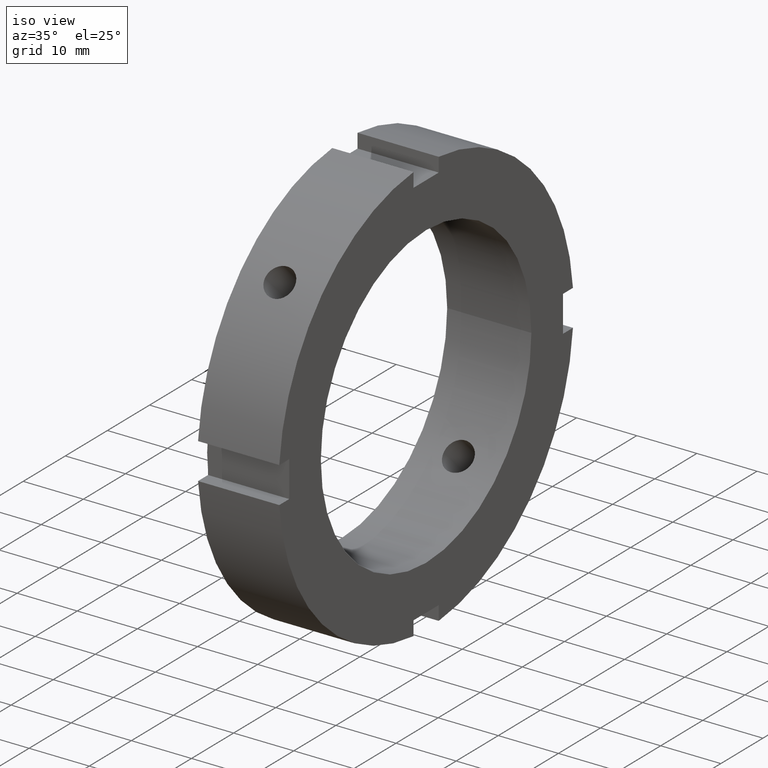
[diagram: clean part render]
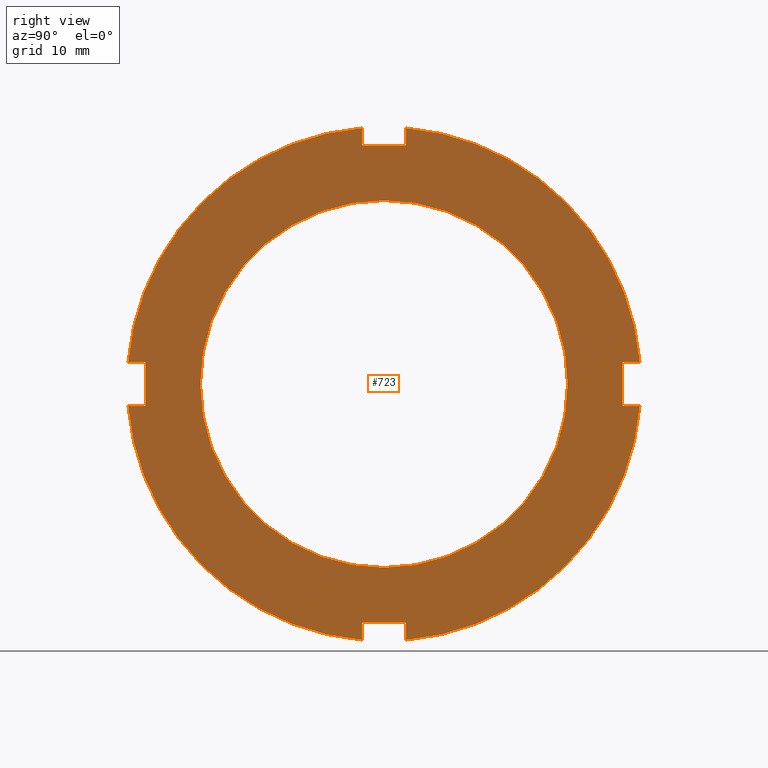
[diagram: tour spotlight — one face highlighted and labeled with its STEP entity id]
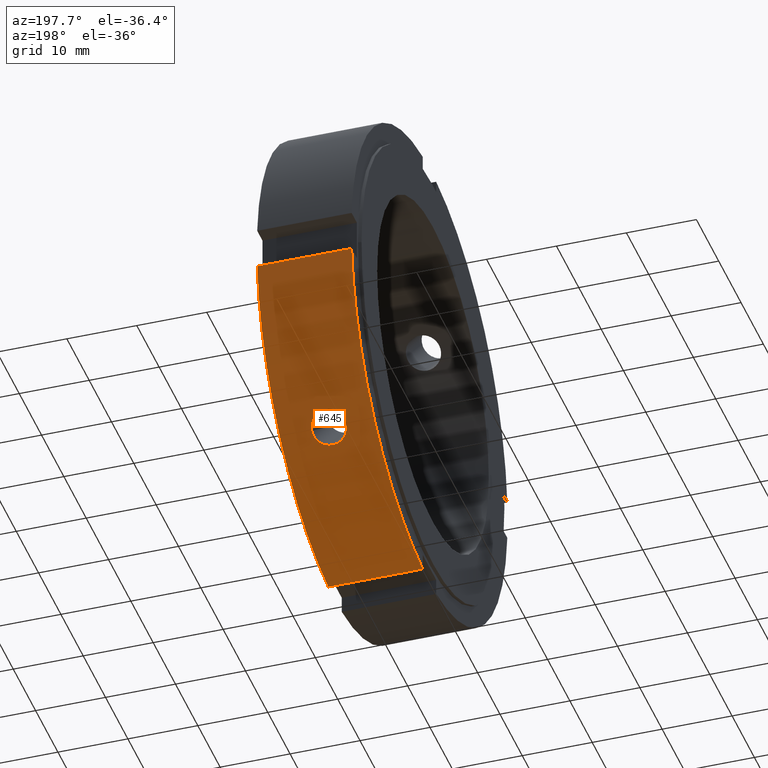
[diagram: tour spotlight — one face highlighted and labeled with its STEP entity id]
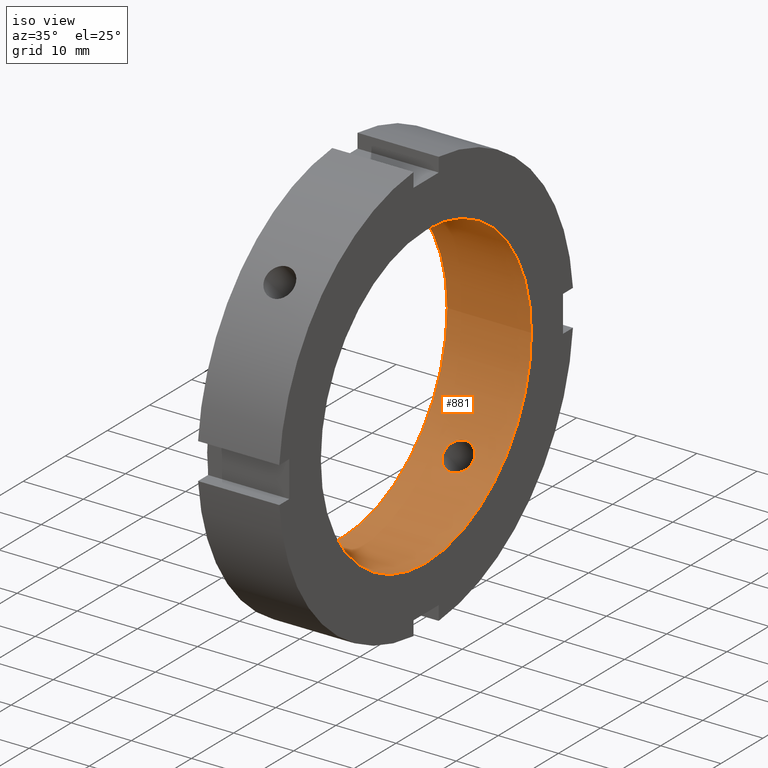
[diagram: tour spotlight — one face highlighted and labeled with its STEP entity id]
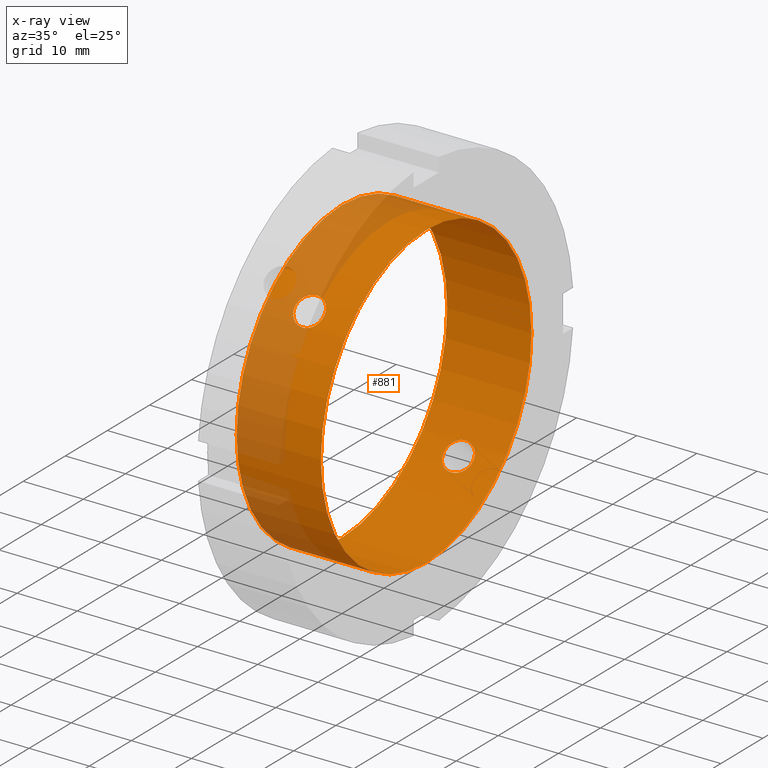
[diagram: x-ray of the same camera — body ghosted, this tour face saturated]
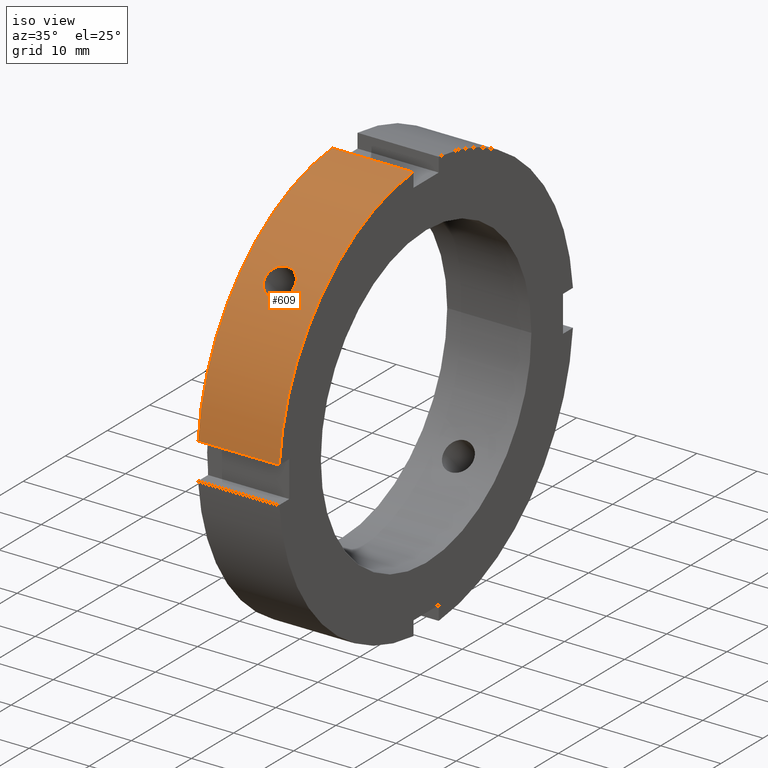
[diagram: tour spotlight — one face highlighted and labeled with its STEP entity id]
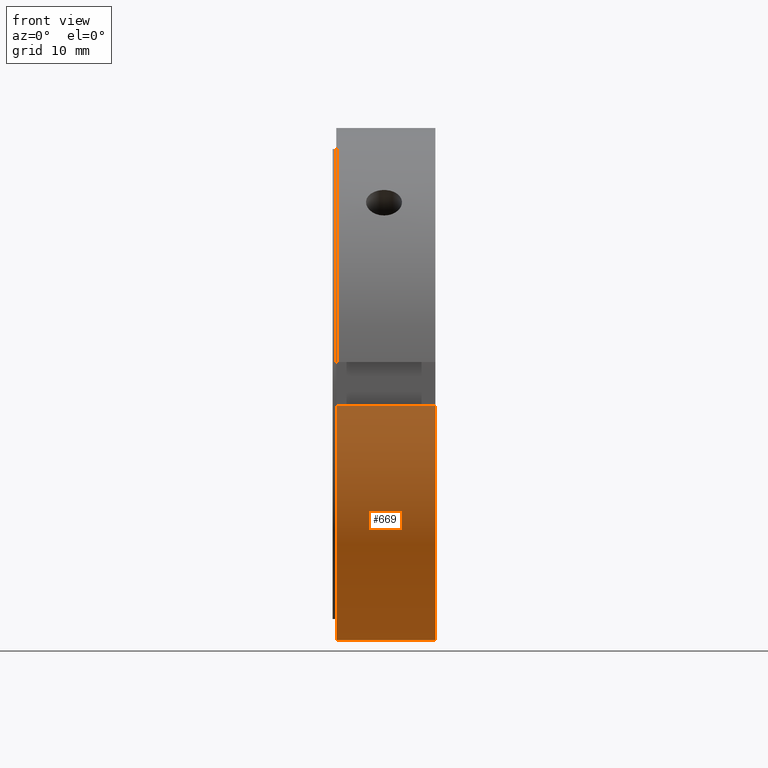
[diagram: tour spotlight — one face highlighted and labeled with its STEP entity id]
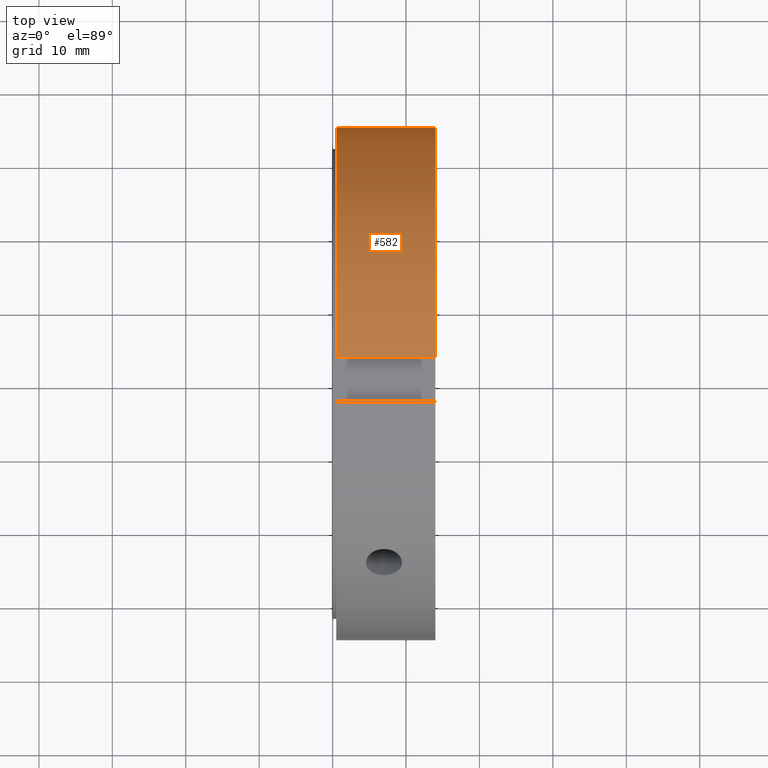
[diagram: tour spotlight — one face highlighted and labeled with its STEP entity id]
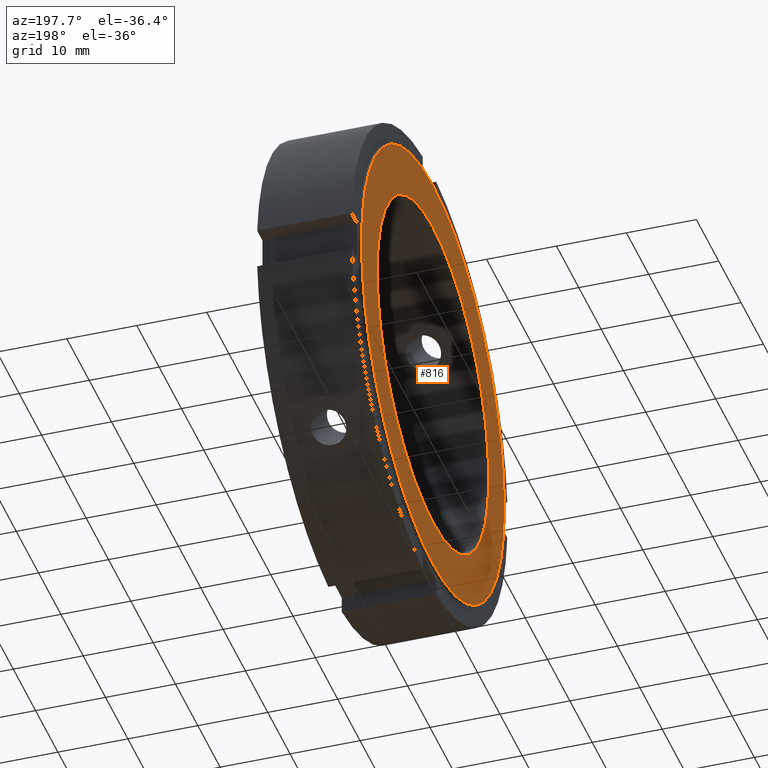
[diagram: tour spotlight — one face highlighted and labeled with its STEP entity id]
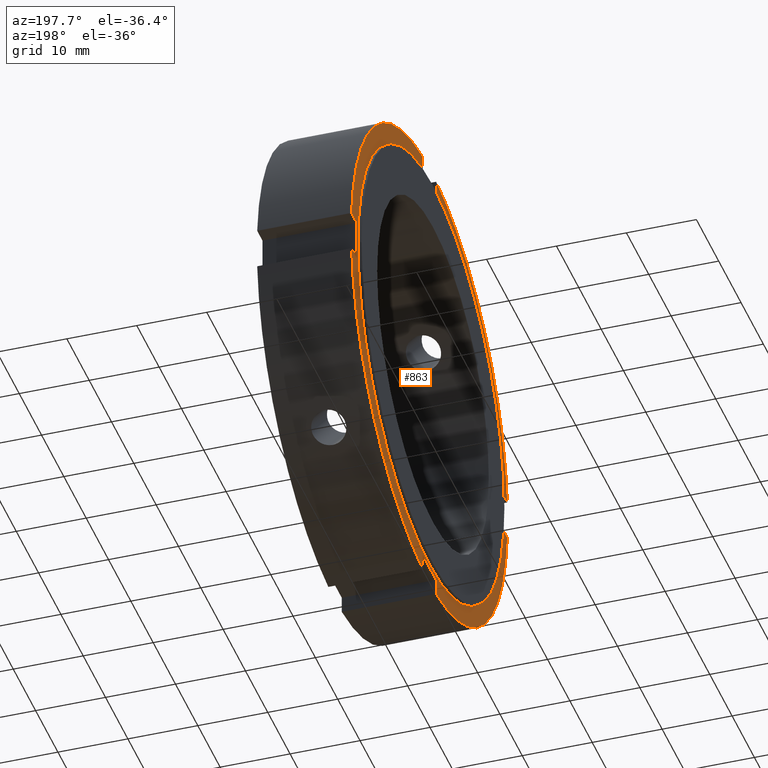
[diagram: tour spotlight — one face highlighted and labeled with its STEP entity id]
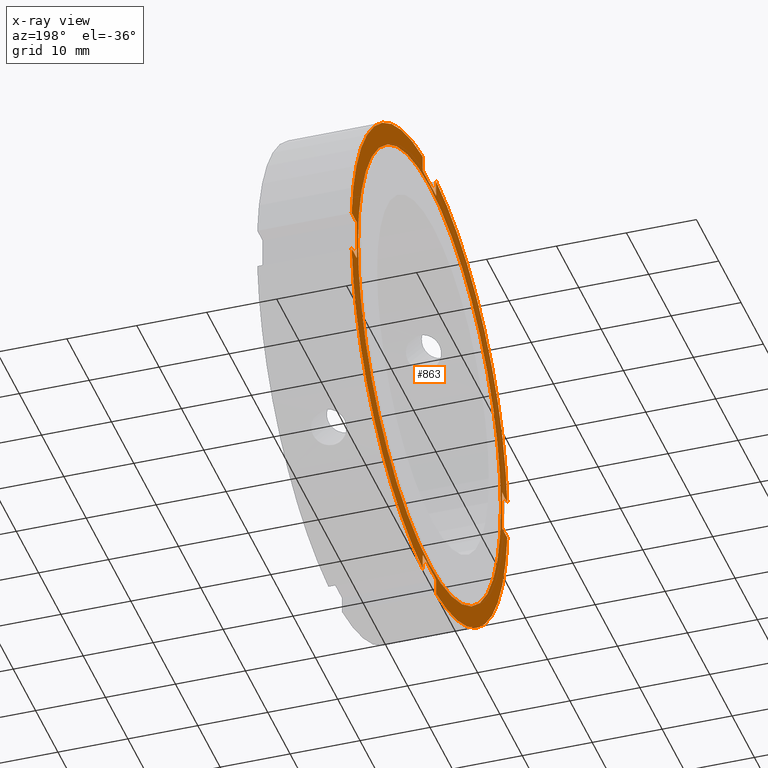
[diagram: x-ray of the same camera — body ghosted, this tour face saturated]
A machine part: a face-by-face anatomy tour. The part has 23 B-rep faces; the first image is the clean iso view, then the 8 largest visible faces are spotlighted one at a time (largest first), each with its STEP entity span.

Face 1 — right view, entity #723. In plain terms, the highlighted planar face has unit normal (1, 0, 0).
Definition (entity closure, byte-faithful):
#259=CARTESIAN_POINT('',(13.999999999999995,-3.000000000000005,-32.500000000000000));
#260=VERTEX_POINT('',#259);
#267=CARTESIAN_POINT('',(13.999999999999995,-3.000000000000005,-34.871191548325385));
#268=VERTEX_POINT('',#267);
#269=CARTESIAN_POINT('',(13.999999999999995,-3.000000000000008,-34.871191548325385));
#270=DIRECTION('',(0.0,0.0,1.0));
#271=VECTOR('',#270,2.371191548325385);
#272=LINE('',#269,#271);
#273=EDGE_CURVE('',#268,#260,#272,.T.);
#299=CARTESIAN_POINT('',(13.999999999999995,2.999999999999992,-34.871191548325385));
#300=VERTEX_POINT('',#299);
#307=CARTESIAN_POINT('',(13.999999999999995,2.999999999999993,-32.500000000000000));
#308=VERTEX_POINT('',#307);
#309=CARTESIAN_POINT('',(13.999999999999995,2.999999999999993,-32.500000000000000));
#310=DIRECTION('',(0.0,0.0,-1.0));
#311=VECTOR('',#310,2.371191548325385);
#312=LINE('',#309,#311);
#313=EDGE_CURVE('',#308,#300,#312,.T.);
#336=CARTESIAN_POINT('',(13.999999999999995,-3.000000000000007,-32.499999999999993));
#337=DIRECTION('',(0.0,1.0,0.0));
#338=VECTOR('',#337,6.0);
#339=LINE('',#336,#338);
#340=EDGE_CURVE('',#260,#308,#339,.T.);
#361=CARTESIAN_POINT('',(13.999999999999995,-32.500000000000000,3.000000000000003));
#362=VERTEX_POINT('',#361);
#369=CARTESIAN_POINT('',(13.999999999999995,-34.871191548325385,3.000000000000003));
#370=VERTEX_POINT('',#369);
#371=CARTESIAN_POINT('',(13.999999999999995,-34.871191548325385,3.000000000000003));
#372=DIRECTION('',(0.0,1.0,0.0));
#373=VECTOR('',#372,2.371191548325385);
#374=LINE('',#371,#373);
#375=EDGE_CURVE('',#370,#362,#374,.T.);
#401=CARTESIAN_POINT('',(13.999999999999995,-34.871191548325385,-2.999999999999994));
#402=VERTEX_POINT('',#401);
#409=CARTESIAN_POINT('',(13.999999999999995,-32.500000000000000,-2.999999999999994));
#410=VERTEX_POINT('',#409);
#411=CARTESIAN_POINT('',(13.999999999999995,-32.500000000000000,-2.999999999999995));
#412=DIRECTION('',(0.0,-1.0,0.0));
#413=VECTOR('',#412,2.371191548325385);
#414=LINE('',#411,#413);
#415=EDGE_CURVE('',#410,#402,#414,.T.);
#438=CARTESIAN_POINT('',(13.999999999999995,-32.500000000000000,3.000000000000003));
#439=DIRECTION('',(0.0,0.0,-1.0));
#440=VECTOR('',#439,5.999999999999998);
#441=LINE('',#438,#440);
#442=EDGE_CURVE('',#362,#410,#441,.T.);
#463=CARTESIAN_POINT('',(13.999999999999995,3.000000000000001,32.500000000000000));
#464=VERTEX_POINT('',#463);
#471=CARTESIAN_POINT('',(13.999999999999995,3.000000000000001,34.871191548325385));
#472=VERTEX_POINT('',#471);
#473=CARTESIAN_POINT('',(13.999999999999995,3.000000000000004,34.871191548325385));
#474=DIRECTION('',(0.0,0.0,-1.0));
#475=VECTOR('',#474,2.371191548325385);
#476=LINE('',#473,#475);
#477=EDGE_CURVE('',#472,#464,#476,.T.);
#503=CARTESIAN_POINT('',(13.999999999999995,-2.999999999999996,34.871191548325385));
#504=VERTEX_POINT('',#503);
#511=CARTESIAN_POINT('',(13.999999999999995,-2.999999999999996,32.500000000000000));
#512=VERTEX_POINT('',#511);
#513=CARTESIAN_POINT('',(13.999999999999995,-2.999999999999997,32.500000000000000));
#514=DIRECTION('',(0.0,0.0,1.0));
#515=VECTOR('',#514,2.371191548325385);
#516=LINE('',#513,#515);
#517=EDGE_CURVE('',#512,#504,#516,.T.);
#540=CARTESIAN_POINT('',(13.999999999999995,3.0,32.500000000000000));
#541=DIRECTION('',(0.0,-1.0,0.0));
#542=VECTOR('',#541,5.999999999999996);
#543=LINE('',#540,#542);
#544=EDGE_CURVE('',#464,#512,#543,.T.);
#556=CARTESIAN_POINT('',(13.999999999999995,34.871191548325385,2.999999999999999));
#557=VERTEX_POINT('',#556);
#558=CARTESIAN_POINT('',(13.999999999999993,0.0,0.0));
#559=DIRECTION('',(1.0,0.0,0.0));
#560=DIRECTION('',(0.0,1.0,0.0));
#561=AXIS2_PLACEMENT_3D('',#558,#559,#560);
#562=CIRCLE('',#561,35.0);
#563=EDGE_CURVE('',#557,#472,#562,.T.);
#589=CARTESIAN_POINT('',(13.999999999999993,0.0,0.0));
#590=DIRECTION('',(1.0,0.0,0.0));
#591=DIRECTION('',(0.0,1.0,0.0));
#592=AXIS2_PLACEMENT_3D('',#589,#590,#591);
#593=CIRCLE('',#592,35.0);
#594=EDGE_CURVE('',#504,#370,#593,.T.);
#625=CARTESIAN_POINT('',(13.999999999999995,34.871191548325385,-2.999999999999999));
#626=VERTEX_POINT('',#625);
#633=CARTESIAN_POINT('',(13.999999999999993,0.0,0.0));
#634=DIRECTION('',(1.0,0.0,0.0));
#635=DIRECTION('',(0.0,1.0,0.0));
#636=AXIS2_PLACEMENT_3D('',#633,#634,#635);
#637=CIRCLE('',#636,35.0);
#638=EDGE_CURVE('',#300,#626,#637,.T.);
#652=CARTESIAN_POINT('',(13.999999999999993,0.0,0.0));
#653=DIRECTION('',(1.0,0.0,0.0));
#654=DIRECTION('',(0.0,1.0,0.0));
#655=AXIS2_PLACEMENT_3D('',#652,#653,#654);
#656=CIRCLE('',#655,35.0);
#657=EDGE_CURVE('',#402,#268,#656,.T.);
#670=CARTESIAN_POINT('',(13.999999999999995,30.0,0.0));
#671=DIRECTION('',(1.0,0.0,0.0));
#672=DIRECTION('',(0.0,0.0,-1.0));
#673=AXIS2_PLACEMENT_3D('',#670,#671,#672);
#674=PLANE('',#673);
#675=ORIENTED_EDGE('',*,*,#273,.T.);
#676=ORIENTED_EDGE('',*,*,#340,.T.);
#677=ORIENTED_EDGE('',*,*,#313,.T.);
#678=ORIENTED_EDGE('',*,*,#638,.T.);
#679=CARTESIAN_POINT('',(13.999999999999995,32.500000000000000,-2.999999999999999));
#680=VERTEX_POINT('',#679);
#681=CARTESIAN_POINT('',(13.999999999999995,34.871191548325385,-2.999999999999999));
#682=DIRECTION('',(0.0,-1.0,0.0));
#683=VECTOR('',#682,2.371191548325385);
#684=LINE('',#681,#683);
#685=EDGE_CURVE('',#626,#680,#684,.T.);
#686=ORIENTED_EDGE('',*,*,#685,.T.);
#687=CARTESIAN_POINT('',(13.999999999999995,32.500000000000000,2.999999999999999));
#688=VERTEX_POINT('',#687);
#689=CARTESIAN_POINT('',(13.999999999999995,32.500000000000000,-2.999999999999999));
#690=DIRECTION('',(0.0,0.0,1.0));
#691=VECTOR('',#690,5.999999999999998);
#692=LINE('',#689,#691);
#693=EDGE_CURVE('',#680,#688,#692,.T.);
#694=ORIENTED_EDGE('',*,*,#693,.T.);
#695=CARTESIAN_POINT('',(13.999999999999995,32.500000000000000,2.999999999999999));
#696=DIRECTION('',(0.0,1.0,0.0));
#697=VECTOR('',#696,2.371191548325385);
#698=LINE('',#695,#697);
#699=EDGE_CURVE('',#688,#557,#698,.T.);
#700=ORIENTED_EDGE('',*,*,#699,.T.);
#701=ORIENTED_EDGE('',*,*,#563,.T.);
#702=ORIENTED_EDGE('',*,*,#477,.T.);
#703=ORIENTED_EDGE('',*,*,#544,.T.);
#704=ORIENTED_EDGE('',*,*,#517,.T.);
#705=ORIENTED_EDGE('',*,*,#594,.T.);
#706=ORIENTED_EDGE('',*,*,#375,.T.);
#707=ORIENTED_EDGE('',*,*,#442,.T.);
#708=ORIENTED_EDGE('',*,*,#415,.T.);
#709=ORIENTED_EDGE('',*,*,#657,.T.);
#710=EDGE_LOOP('',(#675,#676,#677,#678,#686,#694,#700,#701,#702,#703,#704,#705,#706,#707,#708,#709));
#711=FACE_OUTER_BOUND('',#710,.T.);
#712=CARTESIAN_POINT('',(13.999999999999995,25.0,0.0));
#713=VERTEX_POINT('',#712);
#714=CARTESIAN_POINT('',(13.999999999999995,0.0,0.0));
#715=DIRECTION('',(1.0,0.0,0.0));
#716=DIRECTION('',(0.0,1.0,0.0));
#717=AXIS2_PLACEMENT_3D('',#714,#715,#716);
#718=CIRCLE('',#717,25.0);
#719=EDGE_CURVE('',#713,#713,#718,.T.);
#720=ORIENTED_EDGE('',*,*,#719,.F.);
#721=EDGE_LOOP('',(#720));
#722=FACE_BOUND('',#721,.T.);
#723=ADVANCED_FACE('',(#711,#722),#674,.T.);

Face 2 — auxiliary view, entity #645. In plain terms, the highlighted cylindrical surface (partial cylindrical patch) has radius 35 mm, axis along (1, 0, 0).
Definition (entity closure, byte-faithful):
#161=CARTESIAN_POINT('',(6.999999999999994,22.949183955440592,-26.426027998534853));
#162=VERTEX_POINT('',#161);
#163=CARTESIAN_POINT('',(6.999999999999993,22.949183955440596,-26.426027998534853));
#164=CARTESIAN_POINT('',(7.308803977342720,22.949183955440596,-26.426027998534853));
#165=CARTESIAN_POINT('',(7.638121638273502,22.996032676072634,-26.385569716846732));
#166=CARTESIAN_POINT('',(8.243815084881787,23.185006169981509,-26.219673853535475));
#167=CARTESIAN_POINT('',(8.520199516624388,23.326960186816315,-26.094073412893088));
#168=CARTESIAN_POINT('',(8.956644346498582,23.650920794621090,-25.800807823062158));
#169=CARTESIAN_POINT('',(9.145834056158348,23.854522135317989,-25.613542438584851));
#170=CARTESIAN_POINT('',(9.396764694186130,24.294330926372773,-25.196770971624616));
#171=CARTESIAN_POINT('',(9.458499999999994,24.530380135175250,-24.967094547883072));
#172=CARTESIAN_POINT('',(9.458499999999994,24.967094547883057,-24.530380135175260));
#173=CARTESIAN_POINT('',(9.396764694186134,25.196770971624609,-24.294330926372780));
#174=CARTESIAN_POINT('',(9.145834056158353,25.613542438584844,-23.854522135317993));
#175=CARTESIAN_POINT('',(8.956644346498578,25.800807823062151,-23.650920794621094));
#176=CARTESIAN_POINT('',(8.520199516624384,26.094073412893081,-23.326960186816326));
#177=CARTESIAN_POINT('',(8.243815084881787,26.219673853535479,-23.185006169981509));
#178=CARTESIAN_POINT('',(7.638121638273500,26.385569716846735,-22.996032676072634));
#179=CARTESIAN_POINT('',(7.308803977342721,26.426027998534853,-22.949183955440592));
#180=CARTESIAN_POINT('',(6.691196022657268,26.426027998534853,-22.949183955440592));
#181=CARTESIAN_POINT('',(6.361878361726489,26.385569716846735,-22.996032676072634));
#182=CARTESIAN_POINT('',(5.756184915118202,26.219673853535479,-23.185006169981509));
#183=CARTESIAN_POINT('',(5.479800483375604,26.094073412893081,-23.326960186816326));
#184=CARTESIAN_POINT('',(5.043355653501410,25.800807823062151,-23.650920794621094));
#185=CARTESIAN_POINT('',(4.854165943841635,25.613542438584844,-23.854522135317993));
#186=CARTESIAN_POINT('',(4.603235305813854,25.196770971624609,-24.294330926372780));
#187=CARTESIAN_POINT('',(4.541499999999994,24.967094547883057,-24.530380135175260));
#188=CARTESIAN_POINT('',(4.541499999999994,24.530380135175250,-24.967094547883072));
#189=CARTESIAN_POINT('',(4.603235305813857,24.294330926372773,-25.196770971624616));
#190=CARTESIAN_POINT('',(4.854165943841635,23.854522135317996,-25.613542438584844));
#191=CARTESIAN_POINT('',(5.043355653501407,23.650920794621094,-25.800807823062151));
#192=CARTESIAN_POINT('',(5.479800483375600,23.326960186816326,-26.094073412893081));
#193=CARTESIAN_POINT('',(5.756184915118200,23.185006169981506,-26.219673853535465));
#194=CARTESIAN_POINT('',(6.361878361726485,22.996032676072630,-26.385569716846724));
#195=CARTESIAN_POINT('',(6.691196022657266,22.949183955440596,-26.426027998534849));
#196=CARTESIAN_POINT('',(6.999999999999994,22.949183955440596,-26.426027998534849));
#197=B_SPLINE_CURVE_WITH_KNOTS('',3,(#163,#164,#165,#166,#167,#168,#169,#170,#171,#172,#173,#174,#175,#176,#177,#178,#179,#180,#181,#182,#183,#184,#185,#186,#187,#188,#189,#190,#191,#192,#193,#194,#195,#196),.UNSPECIFIED.,.T.,.U.,(4,2,2,2,2,2,2,2,2,2,2,2,2,2,2,2,4),(0.0,0.092641193202818,0.185282386405636,0.277923503205913,0.370564620006191,0.463205736806468,0.555846853606746,0.648488046809564,0.741129240012382,0.833770433215200,0.926411626418018,1.019052743218296,1.111693860018574,1.204334976818851,1.296976093619128,1.389617286821946,1.482258480024764),.UNSPECIFIED.);
#198=EDGE_CURVE('',#162,#162,#197,.T.);
#289=CARTESIAN_POINT('',(0.499999999999994,2.999999999999992,-34.871191548325385));
#290=VERTEX_POINT('',#289);
#299=CARTESIAN_POINT('',(13.999999999999995,2.999999999999992,-34.871191548325385));
#300=VERTEX_POINT('',#299);
#301=CARTESIAN_POINT('',(13.999999999999995,2.999999999999992,-34.871191548325385));
#302=DIRECTION('',(-1.0,0.0,0.0));
#303=VECTOR('',#302,13.500000000000000);
#304=LINE('',#301,#303);
#305=EDGE_CURVE('',#300,#290,#304,.T.);
#610=CARTESIAN_POINT('',(7.249999999999993,0.0,0.0));
#611=DIRECTION('',(1.0,0.0,0.0));
#612=DIRECTION('',(0.0,1.0,0.0));
#613=AXIS2_PLACEMENT_3D('',#610,#611,#612);
#614=CYLINDRICAL_SURFACE('',#613,35.0);
#615=ORIENTED_EDGE('',*,*,#305,.T.);
#616=CARTESIAN_POINT('',(0.499999999999994,34.871191548325385,-2.999999999999999));
#617=VERTEX_POINT('',#616);
#618=CARTESIAN_POINT('',(0.499999999999994,0.0,0.0));
#619=DIRECTION('',(1.0,0.0,0.0));
#620=DIRECTION('',(0.0,1.0,0.0));
#621=AXIS2_PLACEMENT_3D('',#618,#619,#620);
#622=CIRCLE('',#621,34.999999999999993);
#623=EDGE_CURVE('',#290,#617,#622,.T.);
#624=ORIENTED_EDGE('',*,*,#623,.T.);
#625=CARTESIAN_POINT('',(13.999999999999995,34.871191548325385,-2.999999999999999));
#626=VERTEX_POINT('',#625);
#627=CARTESIAN_POINT('',(0.499999999999994,34.871191548325385,-2.999999999999999));
#628=DIRECTION('',(1.0,0.0,0.0));
#629=VECTOR('',#628,13.500000000000000);
#630=LINE('',#627,#629);
#631=EDGE_CURVE('',#617,#626,#630,.T.);
#632=ORIENTED_EDGE('',*,*,#631,.T.);
#633=CARTESIAN_POINT('',(13.999999999999993,0.0,0.0));
#634=DIRECTION('',(1.0,0.0,0.0));
#635=DIRECTION('',(0.0,1.0,0.0));
#636=AXIS2_PLACEMENT_3D('',#633,#634,#635);
#637=CIRCLE('',#636,35.0);
#638=EDGE_CURVE('',#300,#626,#637,.T.);
#639=ORIENTED_EDGE('',*,*,#638,.F.);
#640=EDGE_LOOP('',(#615,#624,#632,#639));
#641=FACE_OUTER_BOUND('',#640,.T.);
#642=ORIENTED_EDGE('',*,*,#198,.T.);
#643=EDGE_LOOP('',(#642));
#644=FACE_BOUND('',#643,.T.);
#645=ADVANCED_FACE('',(#641,#644),#614,.T.);

Face 3 — iso view, entity #881. An x-ray twin of the same camera follows (body ghosted, this face saturated) — the face is partly hidden behind the body. In plain terms, the highlighted cylindrical surface (bore or boss wall) has radius 25 mm, axis along (1, 0, 0).
Definition (entity closure, byte-faithful):
#114=CARTESIAN_POINT('',(6.999999999999994,-19.330405675331022,15.853561632236776));
#115=VERTEX_POINT('',#114);
#116=CARTESIAN_POINT('',(6.999999999999994,-19.330405675331022,15.853561632236783));
#117=CARTESIAN_POINT('',(7.308909568716839,-19.330405675331022,15.853561632236783));
#118=CARTESIAN_POINT('',(7.638272298783562,-19.291210539380096,15.901731740063511));
#119=CARTESIAN_POINT('',(8.243936383707563,-19.129943210713446,16.095376637283227));
#120=CARTESIAN_POINT('',(8.520254821612250,-19.007642829666402,16.240607816653558));
#121=CARTESIAN_POINT('',(8.956588527202165,-18.720614895133156,16.570648926286079));
#122=CARTESIAN_POINT('',(9.145762449267938,-18.536669200698192,16.777476945031790));
#123=CARTESIAN_POINT('',(9.396723695868744,-18.124532598032438,17.221880147018492));
#124=CARTESIAN_POINT('',(9.458499999999994,-17.896100885354087,17.459238173973276));
#125=CARTESIAN_POINT('',(9.458499999999994,-17.459238173973244,17.896100885354119));
#126=CARTESIAN_POINT('',(9.396723695868737,-17.221880147018457,18.124532598032467));
#127=CARTESIAN_POINT('',(9.145762449267929,-16.777476945031758,18.536669200698221));
#128=CARTESIAN_POINT('',(8.956588527202165,-16.570648926286051,18.720614895133185));
#129=CARTESIAN_POINT('',(8.520254821612250,-16.240607816653529,19.007642829666423));
#130=CARTESIAN_POINT('',(8.243936383707558,-16.095376637283209,19.129943210713460));
#131=CARTESIAN_POINT('',(7.638272298783557,-15.901731740063497,19.291210539380110));
#132=CARTESIAN_POINT('',(7.308909568716837,-15.853561632236763,19.330405675331036));
#133=CARTESIAN_POINT('',(6.691090431283149,-15.853561632236763,19.330405675331036));
#134=CARTESIAN_POINT('',(6.361727701216426,-15.901731740063493,19.291210539380110));
#135=CARTESIAN_POINT('',(5.756063616292425,-16.095376637283213,19.129943210713460));
#136=CARTESIAN_POINT('',(5.479745178387736,-16.240607816653537,19.007642829666416));
#137=CARTESIAN_POINT('',(5.043411472797824,-16.570648926286058,18.720614895133178));
#138=CARTESIAN_POINT('',(4.854237550732055,-16.777476945031765,18.536669200698213));
#139=CARTESIAN_POINT('',(4.603276304131250,-17.221880147018464,18.124532598032459));
#140=CARTESIAN_POINT('',(4.541499999999995,-17.459238173973247,17.896100885354119));
#141=CARTESIAN_POINT('',(4.541499999999993,-17.896100885354087,17.459238173973276));
#142=CARTESIAN_POINT('',(4.603276304131246,-18.124532598032435,17.221880147018489));
#143=CARTESIAN_POINT('',(4.854237550732051,-18.536669200698192,16.777476945031786));
#144=CARTESIAN_POINT('',(5.043411472797823,-18.720614895133160,16.570648926286079));
#145=CARTESIAN_POINT('',(5.479745178387738,-19.007642829666402,16.240607816653558));
#146=CARTESIAN_POINT('',(5.756063616292427,-19.129943210713442,16.095376637283231));
#147=CARTESIAN_POINT('',(6.361727701216427,-19.291210539380092,15.901731740063516));
#148=CARTESIAN_POINT('',(6.691090431283149,-19.330405675331019,15.853561632236783));
#149=CARTESIAN_POINT('',(6.999999999999994,-19.330405675331019,15.853561632236783));
#150=B_SPLINE_CURVE_WITH_KNOTS('',3,(#116,#117,#118,#119,#120,#121,#122,#123,#124,#125,#126,#127,#128,#129,#130,#131,#132,#133,#134,#135,#136,#137,#138,#139,#140,#141,#142,#143,#144,#145,#146,#147,#148,#149),.UNSPECIFIED.,.T.,.U.,(4,2,2,2,2,2,2,2,2,2,2,2,2,2,2,2,4),(0.0,0.092672870615053,0.185345741230107,0.278018316929588,0.370690892629069,0.463363468328550,0.556036044028031,0.648708914643084,0.741381785258137,0.834054655873191,0.926727526488244,1.019400102187724,1.112072677887205,1.204745253586686,1.297417829286167,1.390090699901220,1.482763570516274),.UNSPECIFIED.);
#151=EDGE_CURVE('',#115,#115,#150,.T.);
#202=CARTESIAN_POINT('',(6.999999999999994,15.853561632236772,-19.330405675331029));
#203=VERTEX_POINT('',#202);
#204=CARTESIAN_POINT('',(6.999999999999994,15.853561632236772,-19.330405675331029));
#205=CARTESIAN_POINT('',(6.691090431283150,15.853561632236772,-19.330405675331029));
#206=CARTESIAN_POINT('',(6.361727701216427,15.901731740063504,-19.291210539380103));
#207=CARTESIAN_POINT('',(5.756063616292428,16.095376637283216,-19.129943210713453));
#208=CARTESIAN_POINT('',(5.479745178387738,16.240607816653537,-19.007642829666413));
#209=CARTESIAN_POINT('',(5.043411472797823,16.570648926286058,-18.720614895133174));
#210=CARTESIAN_POINT('',(4.854237550732057,16.777476945031768,-18.536669200698203));
#211=CARTESIAN_POINT('',(4.603276304131249,17.221880147018467,-18.124532598032449));
#212=CARTESIAN_POINT('',(4.541499999999995,17.459238173973258,-17.896100885354116));
#213=CARTESIAN_POINT('',(4.541499999999993,17.896100885354102,-17.459238173973272));
#214=CARTESIAN_POINT('',(4.603276304131246,18.124532598032445,-17.221880147018485));
#215=CARTESIAN_POINT('',(4.854237550732048,18.536669200698199,-16.777476945031783));
#216=CARTESIAN_POINT('',(5.043411472797827,18.720614895133163,-16.570648926286076));
#217=CARTESIAN_POINT('',(5.479745178387738,19.007642829666406,-16.240607816653551));
#218=CARTESIAN_POINT('',(5.756063616292424,19.129943210713453,-16.095376637283220));
#219=CARTESIAN_POINT('',(6.361727701216426,19.291210539380103,-15.901731740063505));
#220=CARTESIAN_POINT('',(6.691090431283149,19.330405675331033,-15.853561632236774));
#221=CARTESIAN_POINT('',(7.308909568716839,19.330405675331033,-15.853561632236772));
#222=CARTESIAN_POINT('',(7.638272298783563,19.291210539380103,-15.901731740063505));
#223=CARTESIAN_POINT('',(8.243936383707563,19.129943210713453,-16.095376637283220));
#224=CARTESIAN_POINT('',(8.520254821612248,19.007642829666406,-16.240607816653551));
#225=CARTESIAN_POINT('',(8.956588527202163,18.720614895133160,-16.570648926286076));
#226=CARTESIAN_POINT('',(9.145762449267938,18.536669200698199,-16.777476945031779));
#227=CARTESIAN_POINT('',(9.396723695868744,18.124532598032445,-17.221880147018481));
#228=CARTESIAN_POINT('',(9.458499999999994,17.896100885354102,-17.459238173973269));
#229=CARTESIAN_POINT('',(9.458499999999994,17.459238173973258,-17.896100885354116));
#230=CARTESIAN_POINT('',(9.396723695868740,17.221880147018471,-18.124532598032452));
#231=CARTESIAN_POINT('',(9.145762449267931,16.777476945031772,-18.536669200698206));
#232=CARTESIAN_POINT('',(8.956588527202165,16.570648926286058,-18.720614895133174));
#233=CARTESIAN_POINT('',(8.520254821612250,16.240607816653537,-19.007642829666413));
#234=CARTESIAN_POINT('',(8.243936383707560,16.095376637283216,-19.129943210713453));
#235=CARTESIAN_POINT('',(7.638272298783560,15.901731740063504,-19.291210539380103));
#236=CARTESIAN_POINT('',(7.308909568716837,15.853561632236772,-19.330405675331029));
#237=CARTESIAN_POINT('',(6.999999999999993,15.853561632236772,-19.330405675331029));
#238=B_SPLINE_CURVE_WITH_KNOTS('',3,(#204,#205,#206,#207,#208,#209,#210,#211,#212,#213,#214,#215,#216,#217,#218,#219,#220,#221,#222,#223,#224,#225,#226,#227,#228,#229,#230,#231,#232,#233,#234,#235,#236,#237),.UNSPECIFIED.,.T.,.U.,(4,2,2,2,2,2,2,2,2,2,2,2,2,2,2,2,4),(0.0,0.092672870615053,0.185345741230106,0.278018316929587,0.370690892629068,0.463363468328549,0.556036044028030,0.648708914643084,0.741381785258137,0.834054655873191,0.926727526488244,1.019400102187725,1.112072677887206,1.204745253586687,1.297417829286168,1.390090699901221,1.482763570516275),.UNSPECIFIED.);
#239=EDGE_CURVE('',#203,#203,#238,.T.);
#712=CARTESIAN_POINT('',(13.999999999999995,25.0,0.0));
#713=VERTEX_POINT('',#712);
#714=CARTESIAN_POINT('',(13.999999999999995,0.0,0.0));
#715=DIRECTION('',(1.0,0.0,0.0));
#716=DIRECTION('',(0.0,1.0,0.0));
#717=AXIS2_PLACEMENT_3D('',#714,#715,#716);
#718=CIRCLE('',#717,25.0);
#719=EDGE_CURVE('',#713,#713,#718,.T.);
#805=CARTESIAN_POINT('',(-6.760167E-015,25.0,0.0));
#806=VERTEX_POINT('',#805);
#807=CARTESIAN_POINT('',(-6.761085E-015,0.0,0.0));
#808=DIRECTION('',(1.0,0.0,0.0));
#809=DIRECTION('',(0.0,1.0,0.0));
#810=AXIS2_PLACEMENT_3D('',#807,#808,#809);
#811=CIRCLE('',#810,25.0);
#812=EDGE_CURVE('',#806,#806,#811,.T.);
#864=CARTESIAN_POINT('',(6.999999999999994,0.0,0.0));
#865=DIRECTION('',(1.0,0.0,0.0));
#866=DIRECTION('',(0.0,1.0,0.0));
#867=AXIS2_PLACEMENT_3D('',#864,#865,#866);
#868=CYLINDRICAL_SURFACE('',#867,25.0);
#869=ORIENTED_EDGE('',*,*,#812,.F.);
#870=EDGE_LOOP('',(#869));
#871=FACE_OUTER_BOUND('',#870,.T.);
#872=ORIENTED_EDGE('',*,*,#151,.T.);
#873=EDGE_LOOP('',(#872));
#874=FACE_BOUND('',#873,.T.);
#875=ORIENTED_EDGE('',*,*,#239,.T.);
#876=EDGE_LOOP('',(#875));
#877=FACE_BOUND('',#876,.T.);
#878=ORIENTED_EDGE('',*,*,#719,.T.);
#879=EDGE_LOOP('',(#878));
#880=FACE_BOUND('',#879,.T.);
#881=ADVANCED_FACE('',(#871,#874,#877,#880),#868,.F.);

Face 4 — iso view, entity #609. In plain terms, the highlighted cylindrical surface (partial cylindrical patch) has radius 35 mm, axis along (1, 0, 0).
Definition (entity closure, byte-faithful):
#73=CARTESIAN_POINT('',(6.999999999999994,-26.426027998534849,22.949183955440596));
#74=VERTEX_POINT('',#73);
#75=CARTESIAN_POINT('',(6.999999999999994,-26.426027998534842,22.949183955440606));
#76=CARTESIAN_POINT('',(6.691196022657269,-26.426027998534842,22.949183955440606));
#77=CARTESIAN_POINT('',(6.361878361726490,-26.385569716846721,22.996032676072641));
#78=CARTESIAN_POINT('',(5.756184915118206,-26.219673853535465,23.185006169981520));
#79=CARTESIAN_POINT('',(5.479800483375602,-26.094073412893074,23.326960186816326));
#80=CARTESIAN_POINT('',(5.043355653501407,-25.800807823062144,23.650920794621104));
#81=CARTESIAN_POINT('',(4.854165943841637,-25.613542438584837,23.854522135318000));
#82=CARTESIAN_POINT('',(4.603235305813854,-25.196770971624606,24.294330926372787));
#83=CARTESIAN_POINT('',(4.541499999999993,-24.967094547883050,24.530380135175271));
#84=CARTESIAN_POINT('',(4.541499999999995,-24.530380135175236,24.967094547883075));
#85=CARTESIAN_POINT('',(4.603235305813859,-24.294330926372751,25.196770971624638));
#86=CARTESIAN_POINT('',(4.854165943841647,-23.854522135317964,25.613542438584869));
#87=CARTESIAN_POINT('',(5.043355653501407,-23.650920794621072,25.800807823062168));
#88=CARTESIAN_POINT('',(5.479800483375601,-23.326960186816301,26.094073412893096));
#89=CARTESIAN_POINT('',(5.756184915118205,-23.185006169981502,26.219673853535483));
#90=CARTESIAN_POINT('',(6.361878361726488,-22.996032676072623,26.385569716846739));
#91=CARTESIAN_POINT('',(6.691196022657269,-22.949183955440589,26.426027998534856));
#92=CARTESIAN_POINT('',(7.308803977342720,-22.949183955440589,26.426027998534856));
#93=CARTESIAN_POINT('',(7.638121638273500,-22.996032676072623,26.385569716846739));
#94=CARTESIAN_POINT('',(8.243815084881785,-23.185006169981502,26.219673853535483));
#95=CARTESIAN_POINT('',(8.520199516624388,-23.326960186816308,26.094073412893092));
#96=CARTESIAN_POINT('',(8.956644346498582,-23.650920794621083,25.800807823062158));
#97=CARTESIAN_POINT('',(9.145834056158348,-23.854522135317978,25.613542438584854));
#98=CARTESIAN_POINT('',(9.396764694186130,-24.294330926372755,25.196770971624630));
#99=CARTESIAN_POINT('',(9.458499999999994,-24.530380135175239,24.967094547883075));
#100=CARTESIAN_POINT('',(9.458499999999994,-24.967094547883050,24.530380135175271));
#101=CARTESIAN_POINT('',(9.396764694186135,-25.196770971624602,24.294330926372787));
#102=CARTESIAN_POINT('',(9.145834056158352,-25.613542438584833,23.854522135318000));
#103=CARTESIAN_POINT('',(8.956644346498582,-25.800807823062144,23.650920794621104));
#104=CARTESIAN_POINT('',(8.520199516624384,-26.094073412893081,23.326960186816326));
#105=CARTESIAN_POINT('',(8.243815084881783,-26.219673853535468,23.185006169981520));
#106=CARTESIAN_POINT('',(7.638121638273498,-26.385569716846724,22.996032676072641));
#107=CARTESIAN_POINT('',(7.308803977342720,-26.426027998534842,22.949183955440606));
#108=CARTESIAN_POINT('',(6.999999999999994,-26.426027998534842,22.949183955440606));
#109=B_SPLINE_CURVE_WITH_KNOTS('',3,(#75,#76,#77,#78,#79,#80,#81,#82,#83,#84,#85,#86,#87,#88,#89,#90,#91,#92,#93,#94,#95,#96,#97,#98,#99,#100,#101,#102,#103,#104,#105,#106,#107,#108),.UNSPECIFIED.,.T.,.U.,(4,2,2,2,2,2,2,2,2,2,2,2,2,2,2,2,4),(0.0,0.092641193202818,0.185282386405636,0.277923503205914,0.370564620006192,0.463205736806470,0.555846853606748,0.648488046809565,0.741129240012383,0.833770433215200,0.926411626418018,1.019052743218295,1.111693860018573,1.204334976818851,1.296976093619129,1.389617286821947,1.482258480024765),.UNSPECIFIED.);
#110=EDGE_CURVE('',#74,#74,#109,.T.);
#353=CARTESIAN_POINT('',(0.499999999999994,-34.871191548325385,3.000000000000003));
#354=VERTEX_POINT('',#353);
#369=CARTESIAN_POINT('',(13.999999999999995,-34.871191548325385,3.000000000000003));
#370=VERTEX_POINT('',#369);
#377=CARTESIAN_POINT('',(0.499999999999994,-34.871191548325385,3.000000000000004));
#378=DIRECTION('',(1.0,0.0,0.0));
#379=VECTOR('',#378,13.500000000000000);
#380=LINE('',#377,#379);
#381=EDGE_CURVE('',#354,#370,#380,.T.);
#493=CARTESIAN_POINT('',(0.499999999999994,-2.999999999999996,34.871191548325385));
#494=VERTEX_POINT('',#493);
#503=CARTESIAN_POINT('',(13.999999999999995,-2.999999999999996,34.871191548325385));
#504=VERTEX_POINT('',#503);
#505=CARTESIAN_POINT('',(13.999999999999995,-2.999999999999996,34.871191548325385));
#506=DIRECTION('',(-1.0,0.0,0.0));
#507=VECTOR('',#506,13.500000000000000);
#508=LINE('',#505,#507);
#509=EDGE_CURVE('',#504,#494,#508,.T.);
#583=CARTESIAN_POINT('',(7.249999999999993,0.0,0.0));
#584=DIRECTION('',(1.0,0.0,0.0));
#585=DIRECTION('',(0.0,1.0,0.0));
#586=AXIS2_PLACEMENT_3D('',#583,#584,#585);
#587=CYLINDRICAL_SURFACE('',#586,35.0);
#588=ORIENTED_EDGE('',*,*,#381,.T.);
#589=CARTESIAN_POINT('',(13.999999999999993,0.0,0.0));
#590=DIRECTION('',(1.0,0.0,0.0));
#591=DIRECTION('',(0.0,1.0,0.0));
#592=AXIS2_PLACEMENT_3D('',#589,#590,#591);
#593=CIRCLE('',#592,35.0);
#594=EDGE_CURVE('',#504,#370,#593,.T.);
#595=ORIENTED_EDGE('',*,*,#594,.F.);
#596=ORIENTED_EDGE('',*,*,#509,.T.);
#597=CARTESIAN_POINT('',(0.499999999999994,0.0,0.0));
#598=DIRECTION('',(1.0,0.0,0.0));
#599=DIRECTION('',(0.0,1.0,0.0));
#600=AXIS2_PLACEMENT_3D('',#597,#598,#599);
#601=CIRCLE('',#600,34.999999999999993);
#602=EDGE_CURVE('',#494,#354,#601,.T.);
#603=ORIENTED_EDGE('',*,*,#602,.T.);
#604=EDGE_LOOP('',(#588,#595,#596,#603));
#605=FACE_OUTER_BOUND('',#604,.T.);
#606=ORIENTED_EDGE('',*,*,#110,.T.);
#607=EDGE_LOOP('',(#606));
#608=FACE_BOUND('',#607,.T.);
#609=ADVANCED_FACE('',(#605,#608),#587,.T.);

Face 5 — front view, entity #669. In plain terms, the highlighted cylindrical surface (partial cylindrical patch) has radius 35 mm, axis along (1, 0, 0).
Definition (entity closure, byte-faithful):
#251=CARTESIAN_POINT('',(0.499999999999994,-3.000000000000005,-34.871191548325385));
#252=VERTEX_POINT('',#251);
#267=CARTESIAN_POINT('',(13.999999999999995,-3.000000000000005,-34.871191548325385));
#268=VERTEX_POINT('',#267);
#275=CARTESIAN_POINT('',(0.499999999999994,-3.000000000000005,-34.871191548325385));
#276=DIRECTION('',(1.0,0.0,0.0));
#277=VECTOR('',#276,13.500000000000000);
#278=LINE('',#275,#277);
#279=EDGE_CURVE('',#252,#268,#278,.T.);
#391=CARTESIAN_POINT('',(0.499999999999994,-34.871191548325385,-2.999999999999994));
#392=VERTEX_POINT('',#391);
#401=CARTESIAN_POINT('',(13.999999999999995,-34.871191548325385,-2.999999999999994));
#402=VERTEX_POINT('',#401);
#403=CARTESIAN_POINT('',(13.999999999999995,-34.871191548325385,-2.999999999999994));
#404=DIRECTION('',(-1.0,0.0,0.0));
#405=VECTOR('',#404,13.500000000000000);
#406=LINE('',#403,#405);
#407=EDGE_CURVE('',#402,#392,#406,.T.);
#646=CARTESIAN_POINT('',(7.249999999999993,0.0,0.0));
#647=DIRECTION('',(1.0,0.0,0.0));
#648=DIRECTION('',(0.0,1.0,0.0));
#649=AXIS2_PLACEMENT_3D('',#646,#647,#648);
#650=CYLINDRICAL_SURFACE('',#649,35.0);
#651=ORIENTED_EDGE('',*,*,#279,.T.);
#652=CARTESIAN_POINT('',(13.999999999999993,0.0,0.0));
#653=DIRECTION('',(1.0,0.0,0.0));
#654=DIRECTION('',(0.0,1.0,0.0));
#655=AXIS2_PLACEMENT_3D('',#652,#653,#654);
#656=CIRCLE('',#655,35.0);
#657=EDGE_CURVE('',#402,#268,#656,.T.);
#658=ORIENTED_EDGE('',*,*,#657,.F.);
#659=ORIENTED_EDGE('',*,*,#407,.T.);
#660=CARTESIAN_POINT('',(0.499999999999994,0.0,0.0));
#661=DIRECTION('',(1.0,0.0,0.0));
#662=DIRECTION('',(0.0,1.0,0.0));
#663=AXIS2_PLACEMENT_3D('',#660,#661,#662);
#664=CIRCLE('',#663,34.999999999999993);
#665=EDGE_CURVE('',#392,#252,#664,.T.);
#666=ORIENTED_EDGE('',*,*,#665,.T.);
#667=EDGE_LOOP('',(#651,#658,#659,#666));
#668=FACE_OUTER_BOUND('',#667,.T.);
#669=ADVANCED_FACE('',(#668),#650,.T.);

Face 6 — top view, entity #582. In plain terms, the highlighted cylindrical surface (partial cylindrical patch) has radius 35 mm, axis along (1, 0, 0).
Definition (entity closure, byte-faithful):
#455=CARTESIAN_POINT('',(0.499999999999994,3.000000000000001,34.871191548325385));
#456=VERTEX_POINT('',#455);
#471=CARTESIAN_POINT('',(13.999999999999995,3.000000000000001,34.871191548325385));
#472=VERTEX_POINT('',#471);
#479=CARTESIAN_POINT('',(0.499999999999994,3.000000000000001,34.871191548325385));
#480=DIRECTION('',(1.0,0.0,0.0));
#481=VECTOR('',#480,13.500000000000000);
#482=LINE('',#479,#481);
#483=EDGE_CURVE('',#456,#472,#482,.T.);
#550=CARTESIAN_POINT('',(7.249999999999993,0.0,0.0));
#551=DIRECTION('',(1.0,0.0,0.0));
#552=DIRECTION('',(0.0,1.0,0.0));
#553=AXIS2_PLACEMENT_3D('',#550,#551,#552);
#554=CYLINDRICAL_SURFACE('',#553,35.0);
#555=ORIENTED_EDGE('',*,*,#483,.T.);
#556=CARTESIAN_POINT('',(13.999999999999995,34.871191548325385,2.999999999999999));
#557=VERTEX_POINT('',#556);
#558=CARTESIAN_POINT('',(13.999999999999993,0.0,0.0));
#559=DIRECTION('',(1.0,0.0,0.0));
#560=DIRECTION('',(0.0,1.0,0.0));
#561=AXIS2_PLACEMENT_3D('',#558,#559,#560);
#562=CIRCLE('',#561,35.0);
#563=EDGE_CURVE('',#557,#472,#562,.T.);
#564=ORIENTED_EDGE('',*,*,#563,.F.);
#565=CARTESIAN_POINT('',(0.499999999999994,34.871191548325385,2.999999999999999));
#566=VERTEX_POINT('',#565);
#567=CARTESIAN_POINT('',(13.999999999999995,34.871191548325385,2.999999999999999));
#568=DIRECTION('',(-1.0,0.0,0.0));
#569=VECTOR('',#568,13.500000000000000);
#570=LINE('',#567,#569);
#571=EDGE_CURVE('',#557,#566,#570,.T.);
#572=ORIENTED_EDGE('',*,*,#571,.T.);
#573=CARTESIAN_POINT('',(0.499999999999994,0.0,0.0));
#574=DIRECTION('',(1.0,0.0,0.0));
#575=DIRECTION('',(0.0,1.0,0.0));
#576=AXIS2_PLACEMENT_3D('',#573,#574,#575);
#577=CIRCLE('',#576,34.999999999999993);
#578=EDGE_CURVE('',#566,#456,#577,.T.);
#579=ORIENTED_EDGE('',*,*,#578,.T.);
#580=EDGE_LOOP('',(#555,#564,#572,#579));
#581=FACE_OUTER_BOUND('',#580,.T.);
#582=ADVANCED_FACE('',(#581),#554,.T.);

Face 7 — auxiliary view, entity #816. In plain terms, the highlighted planar face has unit normal (-1, 0, 0).
Definition (entity closure, byte-faithful):
#789=CARTESIAN_POINT('',(-7.820976E-015,28.500000000000000,0.0));
#790=DIRECTION('',(-1.0,0.0,0.0));
#791=DIRECTION('',(0.0,0.0,1.0));
#792=AXIS2_PLACEMENT_3D('',#789,#790,#791);
#793=PLANE('',#792);
#794=CARTESIAN_POINT('',(-8.881784E-015,32.0,0.0));
#795=VERTEX_POINT('',#794);
#796=CARTESIAN_POINT('',(-8.881784E-015,0.0,0.0));
#797=DIRECTION('',(1.0,0.0,0.0));
#798=DIRECTION('',(0.0,1.0,0.0));
#799=AXIS2_PLACEMENT_3D('',#796,#797,#798);
#800=CIRCLE('',#799,32.0);
#801=EDGE_CURVE('',#795,#795,#800,.T.);
#802=ORIENTED_EDGE('',*,*,#801,.F.);
#803=EDGE_LOOP('',(#802));
#804=FACE_OUTER_BOUND('',#803,.T.);
#805=CARTESIAN_POINT('',(-6.760167E-015,25.0,0.0));
#806=VERTEX_POINT('',#805);
#807=CARTESIAN_POINT('',(-6.761085E-015,0.0,0.0));
#808=DIRECTION('',(1.0,0.0,0.0));
#809=DIRECTION('',(0.0,1.0,0.0));
#810=AXIS2_PLACEMENT_3D('',#807,#808,#809);
#811=CIRCLE('',#810,25.0);
#812=EDGE_CURVE('',#806,#806,#811,.T.);
#813=ORIENTED_EDGE('',*,*,#812,.T.);
#814=EDGE_LOOP('',(#813));
#815=FACE_BOUND('',#814,.T.);
#816=ADVANCED_FACE('',(#804,#815),#793,.T.);

Face 8 — auxiliary view, entity #863. An x-ray twin of the same camera follows (body ghosted, this face saturated) — the face is partly hidden behind the body. In plain terms, the highlighted planar face has unit normal (-1, 0, 0).
Definition (entity closure, byte-faithful):
#249=CARTESIAN_POINT('',(0.499999999999994,-3.000000000000005,-32.500000000000000));
#250=VERTEX_POINT('',#249);
#251=CARTESIAN_POINT('',(0.499999999999994,-3.000000000000005,-34.871191548325385));
#252=VERTEX_POINT('',#251);
#253=CARTESIAN_POINT('',(0.499999999999993,-3.000000000000008,-32.500000000000000));
#254=DIRECTION('',(0.0,0.0,-1.0));
#255=VECTOR('',#254,2.371191548325385);
#256=LINE('',#253,#255);
#257=EDGE_CURVE('',#250,#252,#256,.T.);
#289=CARTESIAN_POINT('',(0.499999999999994,2.999999999999992,-34.871191548325385));
#290=VERTEX_POINT('',#289);
#291=CARTESIAN_POINT('',(0.499999999999994,2.999999999999993,-32.500000000000000));
#292=VERTEX_POINT('',#291);
#293=CARTESIAN_POINT('',(0.499999999999993,2.999999999999993,-34.871191548325385));
#294=DIRECTION('',(0.0,0.0,1.0));
#295=VECTOR('',#294,2.371191548325385);
#296=LINE('',#293,#295);
#297=EDGE_CURVE('',#290,#292,#296,.T.);
#329=CARTESIAN_POINT('',(0.499999999999993,2.999999999999993,-32.500000000000000));
#330=DIRECTION('',(0.0,-1.0,0.0));
#331=VECTOR('',#330,6.0);
#332=LINE('',#329,#331);
#333=EDGE_CURVE('',#292,#250,#332,.T.);
#351=CARTESIAN_POINT('',(0.499999999999994,-32.500000000000000,3.000000000000003));
#352=VERTEX_POINT('',#351);
#353=CARTESIAN_POINT('',(0.499999999999994,-34.871191548325385,3.000000000000003));
#354=VERTEX_POINT('',#353);
#355=CARTESIAN_POINT('',(0.499999999999993,-32.500000000000000,3.000000000000003));
#356=DIRECTION('',(0.0,-1.0,0.0));
#357=VECTOR('',#356,2.371191548325378);
#358=LINE('',#355,#357);
#359=EDGE_CURVE('',#352,#354,#358,.T.);
#391=CARTESIAN_POINT('',(0.499999999999994,-34.871191548325385,-2.999999999999994));
#392=VERTEX_POINT('',#391);
#393=CARTESIAN_POINT('',(0.499999999999994,-32.500000000000000,-2.999999999999994));
#394=VERTEX_POINT('',#393);
#395=CARTESIAN_POINT('',(0.499999999999993,-34.871191548325378,-2.999999999999994));
#396=DIRECTION('',(0.0,1.0,0.0));
#397=VECTOR('',#396,2.371191548325378);
#398=LINE('',#395,#397);
#399=EDGE_CURVE('',#392,#394,#398,.T.);
#431=CARTESIAN_POINT('',(0.499999999999993,-32.500000000000000,-2.999999999999994));
#432=DIRECTION('',(0.0,0.0,1.0));
#433=VECTOR('',#432,5.999999999999998);
#434=LINE('',#431,#433);
#435=EDGE_CURVE('',#394,#352,#434,.T.);
#453=CARTESIAN_POINT('',(0.499999999999994,3.000000000000001,32.500000000000000));
#454=VERTEX_POINT('',#453);
#455=CARTESIAN_POINT('',(0.499999999999994,3.000000000000001,34.871191548325385));
#456=VERTEX_POINT('',#455);
#457=CARTESIAN_POINT('',(0.499999999999993,3.000000000000004,32.500000000000000));
#458=DIRECTION('',(0.0,0.0,1.0));
#459=VECTOR('',#458,2.371191548325385);
#460=LINE('',#457,#459);
#461=EDGE_CURVE('',#454,#456,#460,.T.);
#493=CARTESIAN_POINT('',(0.499999999999994,-2.999999999999996,34.871191548325385));
#494=VERTEX_POINT('',#493);
#495=CARTESIAN_POINT('',(0.499999999999994,-2.999999999999996,32.500000000000000));
#496=VERTEX_POINT('',#495);
#497=CARTESIAN_POINT('',(0.499999999999993,-2.999999999999997,34.871191548325385));
#498=DIRECTION('',(0.0,0.0,-1.0));
#499=VECTOR('',#498,2.371191548325385);
#500=LINE('',#497,#499);
#501=EDGE_CURVE('',#494,#496,#500,.T.);
#533=CARTESIAN_POINT('',(0.499999999999993,-2.999999999999996,32.500000000000000));
#534=DIRECTION('',(0.0,1.0,0.0));
#535=VECTOR('',#534,5.999999999999998);
#536=LINE('',#533,#535);
#537=EDGE_CURVE('',#496,#454,#536,.T.);
#565=CARTESIAN_POINT('',(0.499999999999994,34.871191548325385,2.999999999999999));
#566=VERTEX_POINT('',#565);
#573=CARTESIAN_POINT('',(0.499999999999994,0.0,0.0));
#574=DIRECTION('',(1.0,0.0,0.0));
#575=DIRECTION('',(0.0,1.0,0.0));
#576=AXIS2_PLACEMENT_3D('',#573,#574,#575);
#577=CIRCLE('',#576,34.999999999999993);
#578=EDGE_CURVE('',#566,#456,#577,.T.);
#597=CARTESIAN_POINT('',(0.499999999999994,0.0,0.0));
#598=DIRECTION('',(1.0,0.0,0.0));
#599=DIRECTION('',(0.0,1.0,0.0));
#600=AXIS2_PLACEMENT_3D('',#597,#598,#599);
#601=CIRCLE('',#600,34.999999999999993);
#602=EDGE_CURVE('',#494,#354,#601,.T.);
#616=CARTESIAN_POINT('',(0.499999999999994,34.871191548325385,-2.999999999999999));
#617=VERTEX_POINT('',#616);
#618=CARTESIAN_POINT('',(0.499999999999994,0.0,0.0));
#619=DIRECTION('',(1.0,0.0,0.0));
#620=DIRECTION('',(0.0,1.0,0.0));
#621=AXIS2_PLACEMENT_3D('',#618,#619,#620);
#622=CIRCLE('',#621,34.999999999999993);
#623=EDGE_CURVE('',#290,#617,#622,.T.);
#660=CARTESIAN_POINT('',(0.499999999999994,0.0,0.0));
#661=DIRECTION('',(1.0,0.0,0.0));
#662=DIRECTION('',(0.0,1.0,0.0));
#663=AXIS2_PLACEMENT_3D('',#660,#661,#662);
#664=CIRCLE('',#663,34.999999999999993);
#665=EDGE_CURVE('',#392,#252,#664,.T.);
#729=CARTESIAN_POINT('',(0.499999999999994,32.500000000000000,-2.999999999999999));
#730=VERTEX_POINT('',#729);
#731=CARTESIAN_POINT('',(0.499999999999993,32.500000000000000,-2.999999999999999));
#732=DIRECTION('',(0.0,1.0,0.0));
#733=VECTOR('',#732,2.371191548325385);
#734=LINE('',#731,#733);
#735=EDGE_CURVE('',#730,#617,#734,.T.);
#753=CARTESIAN_POINT('',(0.499999999999994,32.500000000000000,2.999999999999999));
#754=VERTEX_POINT('',#753);
#755=CARTESIAN_POINT('',(0.499999999999993,34.871191548325385,2.999999999999999));
#756=DIRECTION('',(0.0,-1.0,0.0));
#757=VECTOR('',#756,2.371191548325385);
#758=LINE('',#755,#757);
#759=EDGE_CURVE('',#566,#754,#758,.T.);
#777=CARTESIAN_POINT('',(0.499999999999993,32.500000000000000,2.999999999999999));
#778=DIRECTION('',(0.0,0.0,-1.0));
#779=VECTOR('',#778,5.999999999999998);
#780=LINE('',#777,#779);
#781=EDGE_CURVE('',#754,#730,#780,.T.);
#822=CARTESIAN_POINT('',(0.499999999999992,32.0,0.0));
#823=VERTEX_POINT('',#822);
#824=CARTESIAN_POINT('',(0.499999999999992,0.0,0.0));
#825=DIRECTION('',(1.0,0.0,0.0));
#826=DIRECTION('',(0.0,1.0,0.0));
#827=AXIS2_PLACEMENT_3D('',#824,#825,#826);
#828=CIRCLE('',#827,32.0);
#829=EDGE_CURVE('',#823,#823,#828,.T.);
#837=CARTESIAN_POINT('',(0.499999999999993,33.500000000000000,0.0));
#838=DIRECTION('',(-1.0,0.0,0.0));
#839=DIRECTION('',(0.0,0.0,1.0));
#840=AXIS2_PLACEMENT_3D('',#837,#838,#839);
#841=PLANE('',#840);
#842=ORIENTED_EDGE('',*,*,#257,.T.);
#843=ORIENTED_EDGE('',*,*,#665,.F.);
#844=ORIENTED_EDGE('',*,*,#399,.T.);
#845=ORIENTED_EDGE('',*,*,#435,.T.);
#846=ORIENTED_EDGE('',*,*,#359,.T.);
#847=ORIENTED_EDGE('',*,*,#602,.F.);
#848=ORIENTED_EDGE('',*,*,#501,.T.);
#849=ORIENTED_EDGE('',*,*,#537,.T.);
#850=ORIENTED_EDGE('',*,*,#461,.T.);
#851=ORIENTED_EDGE('',*,*,#578,.F.);
#852=ORIENTED_EDGE('',*,*,#759,.T.);
#853=ORIENTED_EDGE('',*,*,#781,.T.);
#854=ORIENTED_EDGE('',*,*,#735,.T.);
#855=ORIENTED_EDGE('',*,*,#623,.F.);
#856=ORIENTED_EDGE('',*,*,#297,.T.);
#857=ORIENTED_EDGE('',*,*,#333,.T.);
#858=EDGE_LOOP('',(#842,#843,#844,#845,#846,#847,#848,#849,#850,#851,#852,#853,#854,#855,#856,#857));
#859=FACE_OUTER_BOUND('',#858,.T.);
#860=ORIENTED_EDGE('',*,*,#829,.T.);
#861=EDGE_LOOP('',(#860));
#862=FACE_BOUND('',#861,.T.);
#863=ADVANCED_FACE('',(#859,#862),#841,.T.);